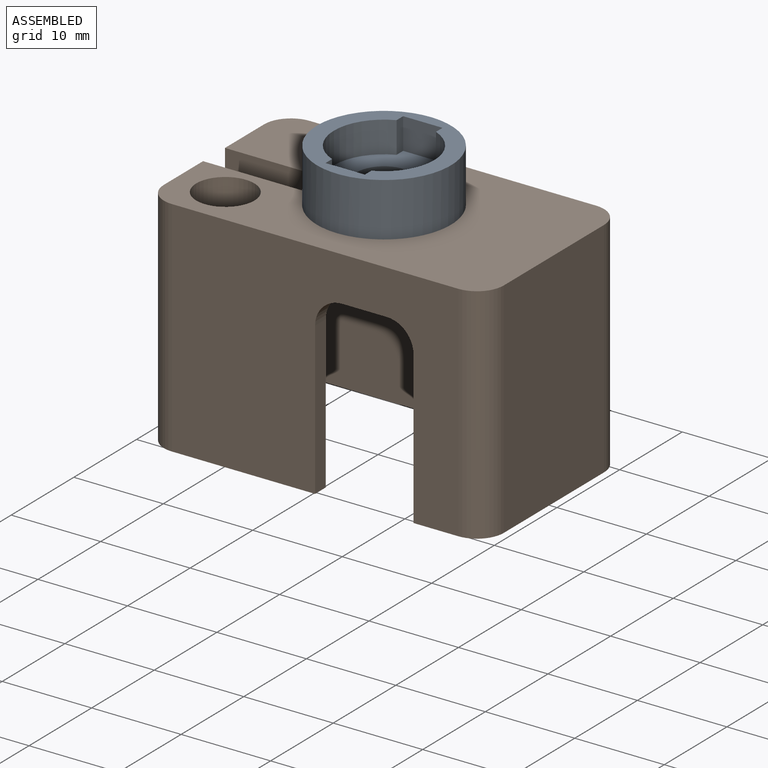
[diagram: assembled view]
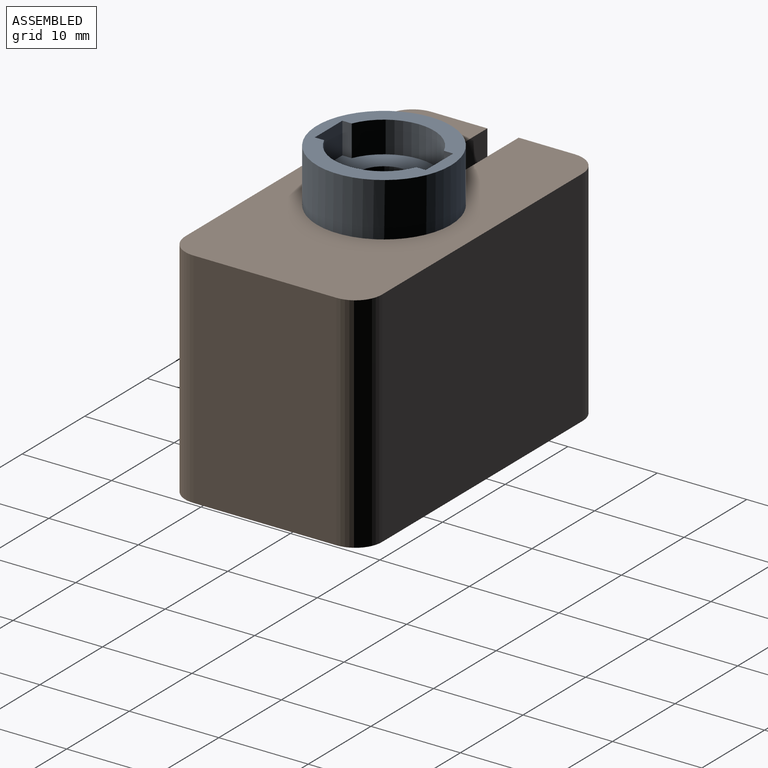
[diagram: assembled view, second angle]
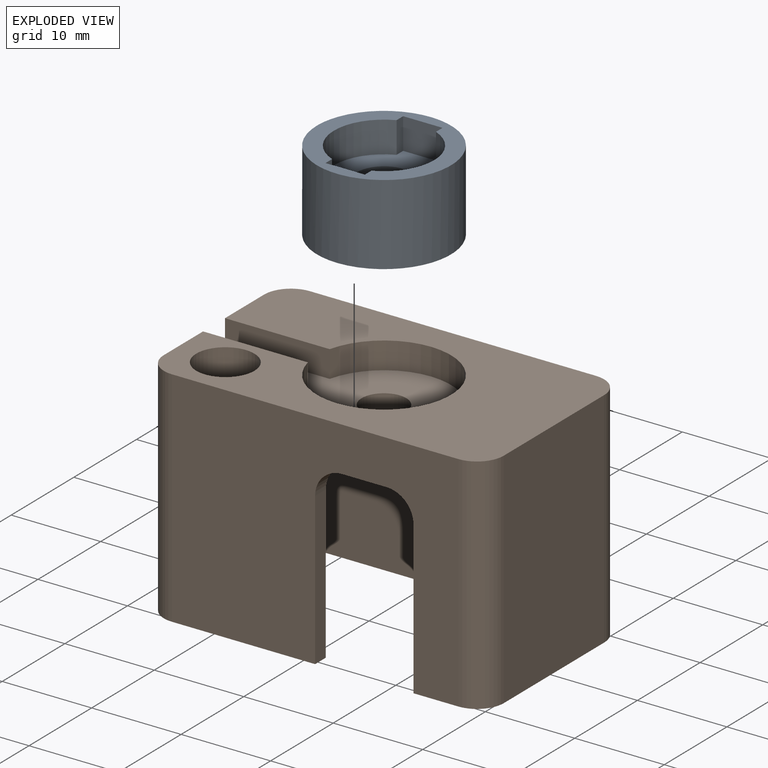
[diagram: exploded view]
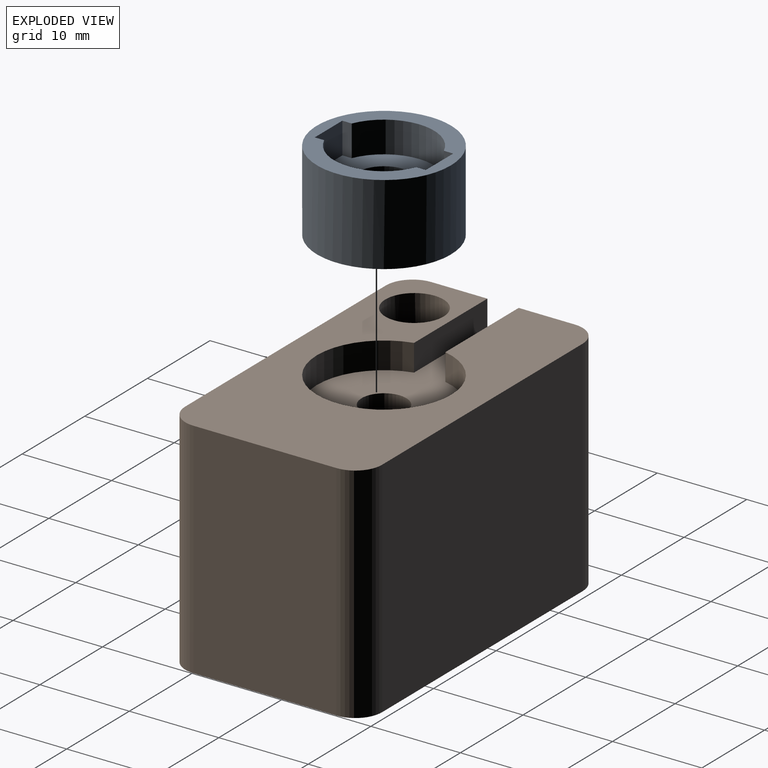
[diagram: exploded view, second angle]
ASSEMBLY  parts=2 mates=3
PART A: 19 faces, bbox 15x15x9 mm
  f0: plane 4.5x3.5mm, normal (1,0,0), area 15.8mm2, adj f2,f3,f6,f18
  f1: plane 3.5x2.5mm, normal (-1,0,0), area 8.8mm2, adj f2,f3,f7,f18
  f2: plane 7.79x4.5mm, normal (0,1,0), area 18.1mm2, adj f0,f1,f4,f6,f7,f18
  f3: plane 7.79x4.5mm, normal (0,-1,0), area 18.1mm2, adj f0,f1,f4,f6,f7,f18
  f4: cylinder r=7.5mm len=15mm, axis (0,0,-1), area 417mm2, adj f2,f3,f5,f6,f7
  f5: plane 15x15mm, normal (0,0,1), area 71.6mm2, adj f4,f8,f9,f10,f11,f12,f13,f14
  f6: plane 15x14.79mm, normal (0,0,-1), area 149mm2, adj f0,f2,f3,f4
  f7: plane 7x3.5mm, normal (0,0,-1), area 24.3mm2, adj f1,f2,f3,f4
  f8: cylinder r=5.6mm len=10.3mm, axis (0,0,1), area 45.7mm2, adj f5,f9,f15,f16
  f9: plane 3.5x1.05mm, normal (1,0,0), area 3.7mm2, adj f5,f8,f10,f16
  f10: plane 4.4x3.5mm, normal (0,1,0), area 15.4mm2, adj f5,f9,f11,f16
  f11: plane 3.5x1.05mm, normal (-1,0,0), area 3.7mm2, adj f5,f10,f12,f16
  f12: cylinder r=5.6mm len=10.3mm, axis (0,0,1), area 45.7mm2, adj f5,f11,f13,f16
  f13: plane 3.5x1.05mm, normal (-1,0,0), area 3.7mm2, adj f5,f12,f14,f16
  f14: plane 4.4x3.5mm, normal (0,-1,0), area 15.4mm2, adj f5,f13,f15,f16
  f15: plane 3.5x1.05mm, normal (1,0,0), area 3.7mm2, adj f5,f8,f14,f16
  f16: plane 12.4x11.2mm, normal (0,0,1), area 76.8mm2, adj f8,f9,f10,f11,f12,f13,f14,f15
  f17: cylinder r=3mm len=6mm, axis (0,0,1), area 18.8mm2, adj f16,f18
  f18: plane 6x6mm, normal (0,0,1), area 24.8mm2, adj f0,f1,f2,f3,f17
PART B: 31 faces, bbox 38x22x25 mm
  f0: plane 25x16mm, normal (-1,0,0), area 389.5mm2, adj f15,f17,f20,f23,f24,f25,f28
  f1: plane 20x17.75mm, normal (0,1,0), area 296.9mm2, adj f3,f7,f15,f16,f21,f29
  f2: cylinder r=2.5mm len=5mm, axis (0,0,-1), area 31.4mm2, adj f16,f20
  f3: plane 3.25x3.25mm, normal (0,0,-1), area 1.4mm2, adj f1,f7,f8,f18
  f4: plane 32x25mm, normal (0,-1,0), area 583.9mm2, adj f15,f16,f17,f21,f22,f25,f26,f29
  f5: plane 25x16mm, normal (1,0,0), area 400mm2, adj f15,f17,f26,f27
  f6: plane 20x6.75mm, normal (0,1,0), area 76.9mm2, adj f13,f15,f16,f22,f30
  f7: cylinder r=2mm len=20mm, axis (0,0,-1), area 62.8mm2, adj f1,f3,f8,f15
  f8: plane 20x14.6mm, normal (1,0,0), area 292mm2, adj f3,f7,f9,f15,f16
  f9: cylinder r=2mm len=20mm, axis (0,0,-1), area 62.8mm2, adj f8,f10,f15,f16
  f10: plane 29.5x20mm, normal (0,-1,0), area 590mm2, adj f9,f11,f15,f16
  f11: cylinder r=2mm len=20mm, axis (0,0,-1), area 62.8mm2, adj f10,f12,f15,f16
  f12: plane 20x14.6mm, normal (-1,0,0), area 292mm2, adj f11,f13,f15,f16
  f13: cylinder r=2mm len=20mm, axis (0,0,-1), area 62.8mm2, adj f6,f12,f15,f16
  f14: plane 32x25mm, normal (0,1,0), area 800mm2, adj f15,f17,f27,f28
  f15: plane 38x22mm, normal (0,0,-1), area 189.9mm2, adj f0,f1,f4,f5,f6,f7,f8,f9
  f16: plane 33.5x20.3mm, normal (0,0,-1), area 573.9mm2, adj f1,f2,f4,f6,f8,f9,f10,f11
  f17: plane 38x22mm, normal (0,0,1), area 577.9mm2, adj f0,f4,f5,f14,f18,f19,f23,f24
  f18: cylinder r=3.25mm len=6.5mm, axis (0,0,-1), area 102.1mm2, adj f3,f16,f17
  f19: cylinder r=7.5mm len=15mm, axis (0,0,1), area 130.8mm2, adj f17,f20,f23,f24
  f20: plane 26.5x15mm, normal (0,0,1), area 197.6mm2, adj f0,f2,f19,f23,f24
  f21: plane 17x1.7mm, normal (1,0,0), area 28.9mm2, adj f1,f4,f15,f29
  f22: plane 17x1.7mm, normal (-1,0,0), area 28.9mm2, adj f4,f6,f15,f30
  f23: plane 11.71x3mm, normal (0,1,0), area 35.1mm2, adj f0,f17,f19,f20
  f24: plane 11.71x3mm, normal (0,-1,0), area 35.1mm2, adj f0,f17,f19,f20
  f25: cylinder r=3mm len=25mm, axis (0,0,-1), area 117.8mm2, adj f0,f4,f15,f17
  f26: cylinder r=3mm len=25mm, axis (0,0,1), area 117.8mm2, adj f4,f5,f15,f17
  f27: cylinder r=3mm len=25mm, axis (0,0,-1), area 117.8mm2, adj f5,f14,f15,f17
  f28: cylinder r=3mm len=25mm, axis (0,0,1), area 117.8mm2, adj f0,f14,f15,f17
  f29: cylinder r=3mm len=3mm, axis (0,1,0), area 8mm2, adj f1,f4,f16,f21
  f30: cylinder r=3mm len=3mm, axis (0,-1,0), area 8mm2, adj f4,f6,f16,f22
PLACE A rot(axis=(0,0,1),180deg) t=(2.32,-20.91,-3.05)mm
PLACE B t=(2.32,-20.91,-25.05)mm
MATE slider A.f4 <-> B.f2  axis (0,0,1) through (2.32,-20.91,5.95)mm
MATE planar A.f2 <-> B.f24  axis (0,-1,0) through (-0.61,-19.16,-1.74)mm
MATE planar A.f6 <-> B.f20  axis (0,0,-1) through (2.96,-20.91,-3.05)mm
